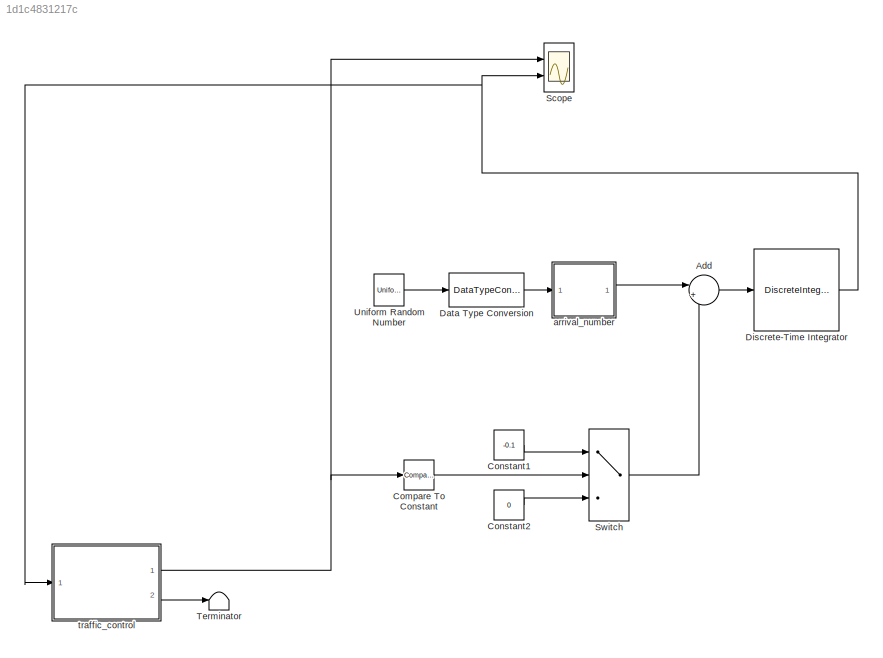
MODEL slx_1d1c4831217c
KIND model
CONFIG AbsTol = auto
CONFIG EnableMultiTasking = on
CONFIG FixedStep = .1
CONFIG MaxStep = auto
CONFIG MinStep = auto
CONFIG RelTol = 1e-3
CONFIG SampleTimeConstraint = Unconstrained
CONFIG SolverName = FixedStepDiscrete
CONFIG StartTime = 0.0
CONFIG StopTime = 150
BLOCK [Sum] Add
  Inputs = |++
  Ports = [2, 1]
BLOCK [Reference] Compare To Constant  REF=simulink/Logic and Bit
Operations/Compare
To Constant
  Ports = [1, 1]
  SourceBlock = simulink/Logic and Bit\nOperations/Compare\nTo Constant
  SourceProductBaseCode = SL
  SourceType = Compare To Constant
BLOCK [Constant] Constant1
  Value = -0.1
BLOCK [Constant] Constant2
  Value = 0
BLOCK [DataTypeConversion] Data Type Conversion
  RndMeth = Floor
  SaturateOnIntegerOverflow = off
BLOCK [DiscreteIntegrator] Discrete-Time Integrator
  ICPrevOutput = DiscIntNeverNeededParam
  ICPrevScaledInput = DiscIntNeverNeededParam
  LimitOutput = on
  LowerSaturationLimit = 0
  Ports = [1, 1]
  SampleTime = -1
BLOCK [Scope] Scope
  Floating = off
  NumInputPorts = 2
  Ports = [2]
  ScopeSpecificationString = Simulink.scopes.TimeScopeBlockCfg('CurrentConfiguration', extmgr.ConfigurationSet(extmgr.Configuration('Core','General UI',true),extmgr.Configuration('Core','Source UI',true),extmgr.Configuration('Sources','WiredSimulink',true,'DataLoggingVariableName','ScopeData1','DataLoggingSaveFormat','StructureWithTime','DataLoggingLimitDataPoints',true,'DataLoggingDecimation','1'),extmgr.Configuration('Visua...<+2503ch>
BLOCK [Switch] Switch
  Criteria = u2 ~= 0
  InputSameDT = off
  SaturateOnIntegerOverflow = off
BLOCK [Terminator] Terminator
BLOCK [UniformRandomNumber] Uniform Random Number
  Maximum = 100
  Minimum = 0
  SampleTime = 0
  Seed = 177836
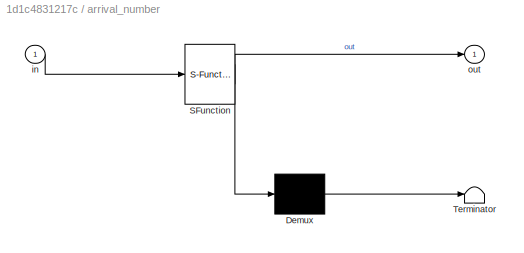
BLOCK [SubSystem] arrival_number
  ErrorFcn = Stateflow.Translate.translate
  PermitHierarchicalResolution = ExplicitOnly
  Ports = [1, 1]
  RequestExecContextInheritance = off
  SFBlockType = Chart
  TreatAsAtomicUnit = on
BLOCK [Demux] arrival_number/ Demux 
  Outputs = 1
  Ports = [1, 1]
BLOCK [S-Function] arrival_number/ SFunction 
  EnableBusSupport = on
  FunctionName = sf_sfun
  PortCounts = [1 2]
  Ports = [1, 2]
  SFcnIsStateOwnerBlock = off
  SFunctionDeploymentMode = off
  Tag = Stateflow S-Function 1
BLOCK [Terminator] arrival_number/ Terminator 
BLOCK [Inport] arrival_number/in
BLOCK [Outport] arrival_number/out
  VectorParamsAs1DForOutWhenUnconnected = off
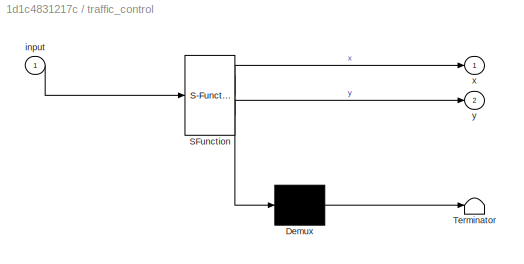
BLOCK [SubSystem] traffic_control
  ErrorFcn = Stateflow.Translate.translate
  PermitHierarchicalResolution = ExplicitOnly
  Ports = [1, 2]
  RequestExecContextInheritance = off
  SFBlockType = Chart
  TreatAsAtomicUnit = on
BLOCK [Demux] traffic_control/ Demux 
  Outputs = 1
  Ports = [1, 1]
BLOCK [S-Function] traffic_control/ SFunction 
  EnableBusSupport = on
  FunctionName = sf_sfun
  PortCounts = [1 3]
  Ports = [1, 3]
  SFcnIsStateOwnerBlock = off
  SFunctionDeploymentMode = off
  Tag = Stateflow S-Function 2
BLOCK [Terminator] traffic_control/ Terminator 
BLOCK [Inport] traffic_control/input
BLOCK [Outport] traffic_control/x
  VectorParamsAs1DForOutWhenUnconnected = off
BLOCK [Outport] traffic_control/y
  Port = 2
  VectorParamsAs1DForOutWhenUnconnected = off
LINE Add:1 -> Discrete-Time Integrator:1
LINE Compare To Constant:1 -> Switch:2
LINE Constant1:1 -> Switch:1
LINE Constant2:1 -> Switch:3
LINE Data Type Conversion:1 -> arrival_number:1
NET Discrete-Time Integrator:1 -> Scope:2, traffic_control:1
LINE Switch:1 -> Add:2
LINE Uniform Random Number:1 -> Data Type Conversion:1
LINE arrival_number:1 -> Add:1
NET traffic_control:1 -> Compare To Constant:1, Scope:1
LINE traffic_control:2 -> Terminator:1
note: NET lines group one-source signal fan-out (src -> all destinations, sorted); 1:1 wires keep LINE
CHART arrival_number states=0 transitions=1
CHART traffic_control states=5 transitions=6
  STATE_LABEL 'StopToGo\nx = R;\ny = Y;'
  STATE_LABEL 'Go\nx = G;\ny = R;'
  STATE_LABEL 'StopForTraffic\nx = R;\ny = G;'
  STATE_LABEL 'GoToStop\nx = Y;\ny = R;'
  STATE_LABEL 'Stop\nx = R;\ny = G;'
CHART  states=0 transitions=0
CHART  states=0 transitions=0
